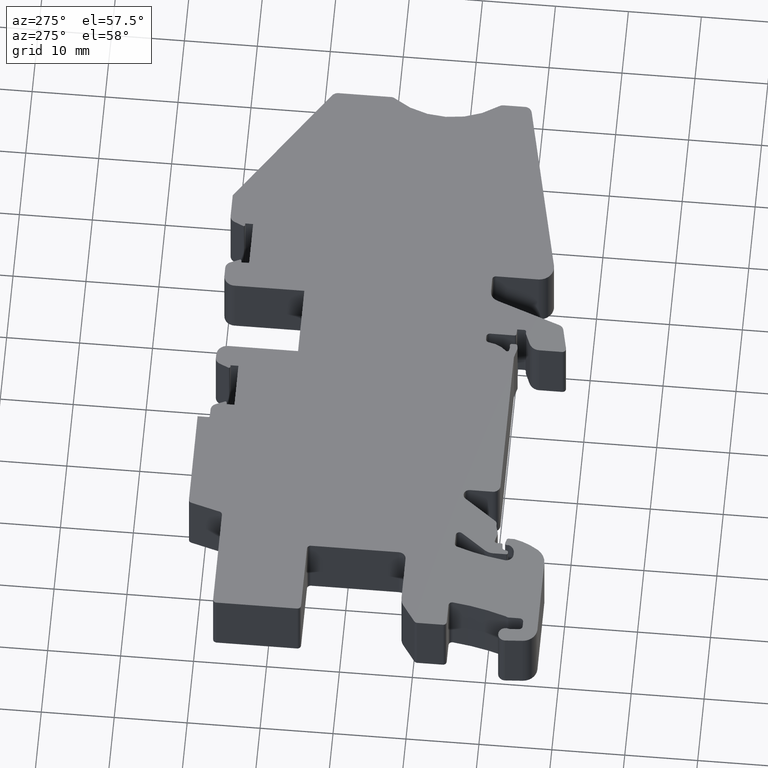
[diagram: clean part render]
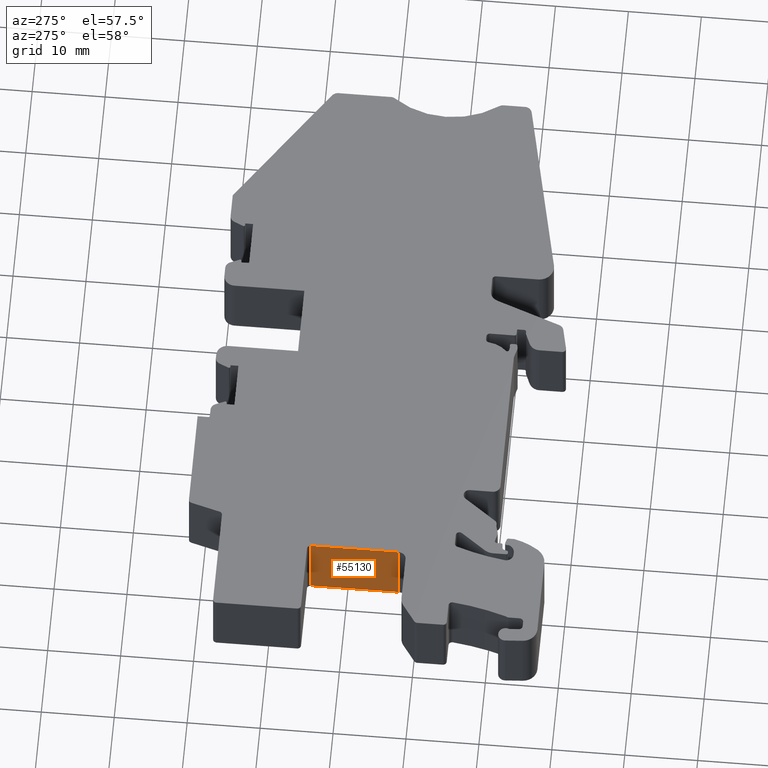
[diagram: same view with one face highlighted and labeled with its STEP entity id]
A machine part, auxiliary view. The second image highlights one B-rep face of the part: STEP entity #55130.
In plain terms, the highlighted planar face has unit normal (-1, 0, 0).
Its self-contained STEP definition (entity closure, byte-faithful):
#6090=CARTESIAN_POINT('',(11.35,24.8000005000018,10.1));
#6100=VERTEX_POINT('',#6090);
#6130=CARTESIAN_POINT('',(11.35,8.71599,10.1));
#6140=DIRECTION('',(0.,1.,0.));
#6150=VECTOR('',#6140,1.);
#6160=LINE('',#6130,#6150);
#6170=CARTESIAN_POINT('',(11.35,12.7469729999982,10.1));
#6180=VERTEX_POINT('',#6170);
#6190=EDGE_CURVE('',#6180,#6100,#6160,.T.);
#20030=CARTESIAN_POINT('',(11.35,12.7469729999982,20.25));
#20040=VERTEX_POINT('',#20030);
#20070=CARTESIAN_POINT('',(11.35,8.71599,20.25));
#20080=DIRECTION('',(0.,1.,0.));
#20090=VECTOR('',#20080,1.);
#20100=LINE('',#20070,#20090);
#20110=CARTESIAN_POINT('',(11.35,24.8000005000018,20.25));
#20120=VERTEX_POINT('',#20110);
#20130=EDGE_CURVE('',#20040,#20120,#20100,.T.);
#54800=CARTESIAN_POINT('',(11.35,24.8000005000018,10.1));
#54810=DIRECTION('',(0.,0.,1.));
#54820=VECTOR('',#54810,1.);
#54830=LINE('',#54800,#54820);
#54840=EDGE_CURVE('',#6100,#20120,#54830,.T.);
#54970=CARTESIAN_POINT('',(11.35,12.746973,10.1));
#54980=DIRECTION('',(-1.,0.,0.));
#54990=DIRECTION('',(0.,1.,0.));
#55000=AXIS2_PLACEMENT_3D('',#54970,#54980,#54990);
#55010=PLANE('',#55000);
#55020=ORIENTED_EDGE('',*,*,#54840,.F.);
#55030=ORIENTED_EDGE('',*,*,#20130,.T.);
#55040=CARTESIAN_POINT('',(11.35,12.7469729999982,10.1));
#55050=DIRECTION('',(0.,0.,1.));
#55060=VECTOR('',#55050,1.);
#55070=LINE('',#55040,#55060);
#55080=EDGE_CURVE('',#6180,#20040,#55070,.T.);
#55090=ORIENTED_EDGE('',*,*,#55080,.T.);
#55100=ORIENTED_EDGE('',*,*,#6190,.F.);
#55110=EDGE_LOOP('',(#55100,#55090,#55030,#55020));
#55120=FACE_OUTER_BOUND('',#55110,.T.);
#55130=ADVANCED_FACE('',(#55120),#55010,.T.);